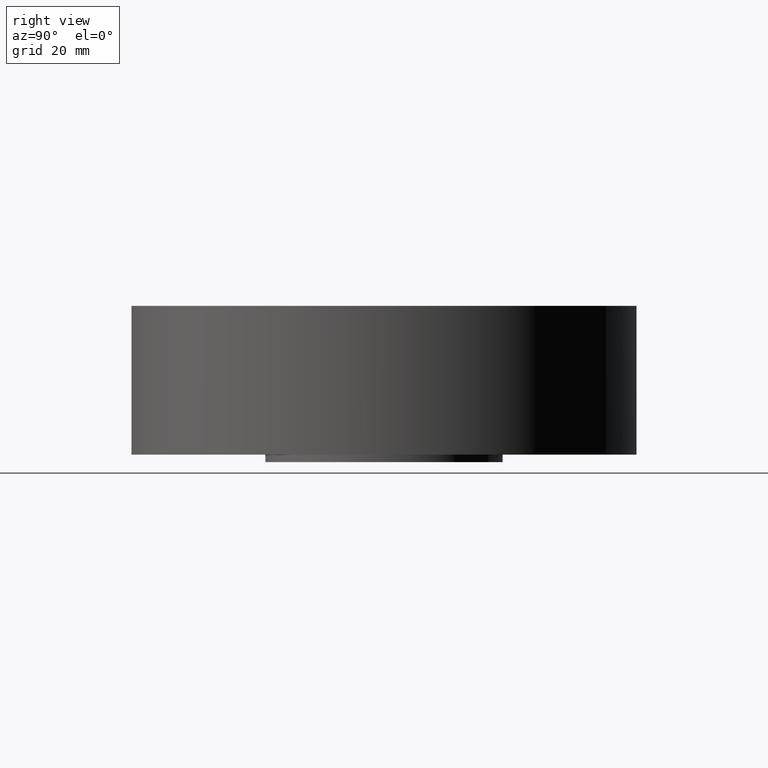
[diagram: clean part render]
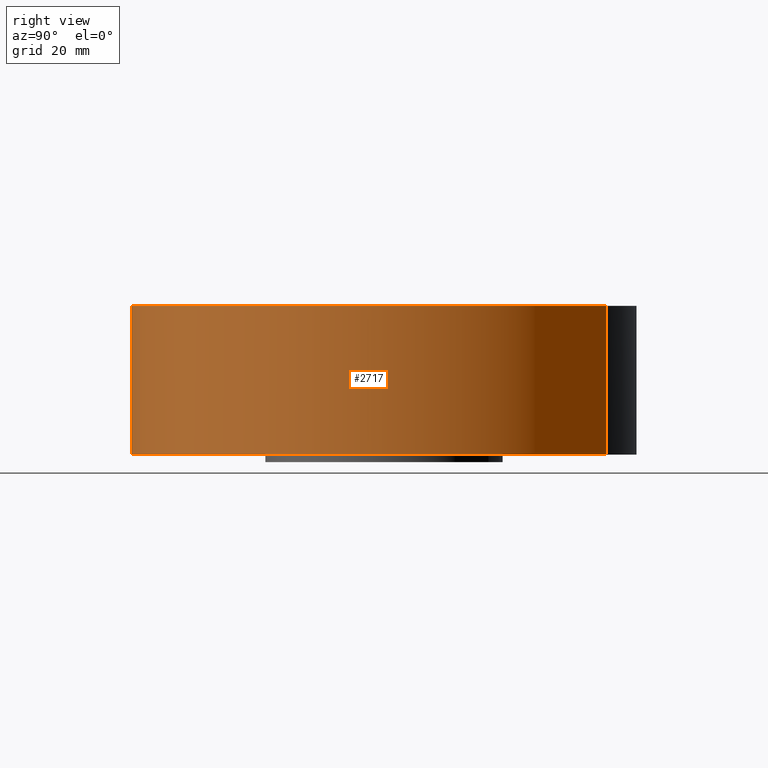
[diagram: same view with one face highlighted and labeled with its STEP entity id]
A machine part, right view. The second image highlights one B-rep face of the part: STEP entity #2717.
In plain terms, the highlighted cylindrical surface (partial cylindrical patch) has radius 53.975 mm, axis along (0, 0, -1).
Its self-contained STEP definition (entity closure, byte-faithful):
#2565=AXIS2_PLACEMENT_3D('Circle Axis2P3D',#2563,#2564,$) ;
#2678=AXIS2_PLACEMENT_3D('Cylinder Axis2P3D',#2675,#2676,#2677) ;
#2708=AXIS2_PLACEMENT_3D('Circle Axis2P3D',#2706,#2707,$) ;
#2558=CARTESIAN_POINT('Vertex',(-1.01877926954,-1.86486294402,-3.87441609853E-014)) ;
#2560=CARTESIAN_POINT('Vertex',(1.01877926954,1.86486294402,-3.87441609853E-014)) ;
#2563=CARTESIAN_POINT('Axis2P3D Location',(0.,0.,0.)) ;
#2675=CARTESIAN_POINT('Axis2P3D Location',(0.,0.,0.593750000002)) ;
#2680=CARTESIAN_POINT('Line Origine',(-1.01877926954,-1.86486294402,0.625000000002)) ;
#2684=CARTESIAN_POINT('Vertex',(-1.01877926954,-1.86486294402,1.25)) ;
#2691=CARTESIAN_POINT('Vertex',(1.01877926954,1.86486294402,1.25)) ;
#2694=CARTESIAN_POINT('Line Origine',(1.01877926954,1.86486294402,0.625000000002)) ;
#2706=CARTESIAN_POINT('Axis2P3D Location',(0.,0.,1.25)) ;
#2564=DIRECTION('Axis2P3D Direction',(0.,0.,-0.0393700787402)) ;
#2676=DIRECTION('Axis2P3D Direction',(0.,0.,-0.0393700787402)) ;
#2677=DIRECTION('Axis2P3D XDirection',(0.0188750212049,0.0345504945626,0.)) ;
#2681=DIRECTION('Vector Direction',(0.,0.,-0.0393700787402)) ;
#2695=DIRECTION('Vector Direction',(0.,0.,-0.0393700787402)) ;
#2707=DIRECTION('Axis2P3D Direction',(0.,0.,-0.0393700787402)) ;
#2682=VECTOR('Line Direction',#2681,0.0393700787402) ;
#2696=VECTOR('Line Direction',#2695,0.0393700787402) ;
#2712=ORIENTED_EDGE('',*,*,#2567,.F.) ;
#2713=ORIENTED_EDGE('',*,*,#2698,.T.) ;
#2714=ORIENTED_EDGE('',*,*,#2710,.T.) ;
#2715=ORIENTED_EDGE('',*,*,#2686,.F.) ;
#2717=ADVANCED_FACE('PartBody',(#2716),#2679,.T.) ;
#2566=CIRCLE('generated circle',#2565,2.12500000001) ;
#2709=CIRCLE('generated circle',#2708,2.12500000001) ;
#2679=CYLINDRICAL_SURFACE('generated cylinder',#2678,2.12500000001) ;
#2567=EDGE_CURVE('',#2561,#2559,#2566,.T.) ;
#2686=EDGE_CURVE('',#2559,#2685,#2683,.F.) ;
#2698=EDGE_CURVE('',#2561,#2692,#2697,.F.) ;
#2710=EDGE_CURVE('',#2692,#2685,#2709,.T.) ;
#2711=EDGE_LOOP('',(#2712,#2713,#2714,#2715)) ;
#2716=FACE_OUTER_BOUND('',#2711,.T.) ;
#2683=LINE('Line',#2680,#2682) ;
#2697=LINE('Line',#2694,#2696) ;
#2559=VERTEX_POINT('',#2558) ;
#2561=VERTEX_POINT('',#2560) ;
#2685=VERTEX_POINT('',#2684) ;
#2692=VERTEX_POINT('',#2691) ;